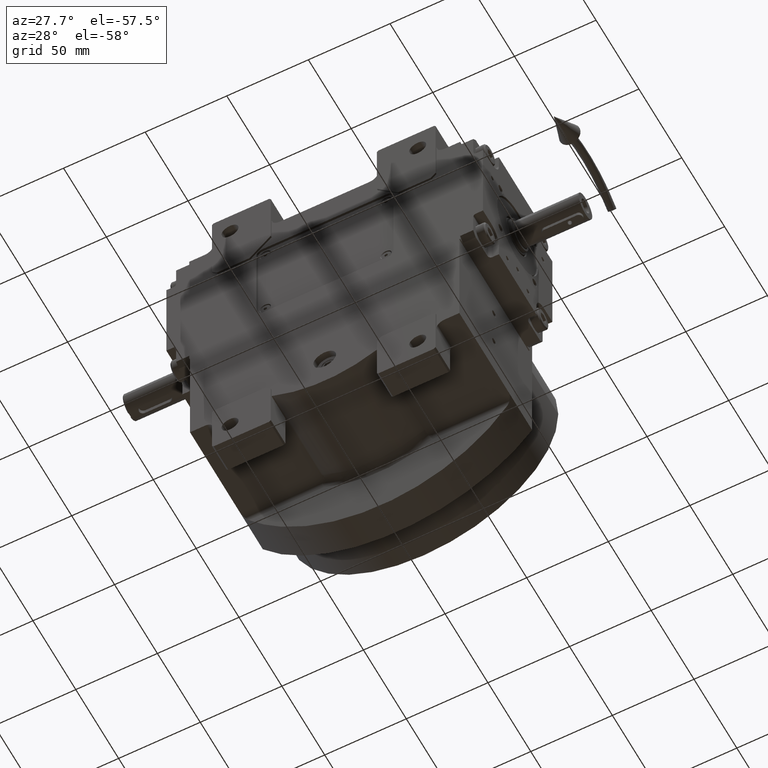
[diagram: clean part render]
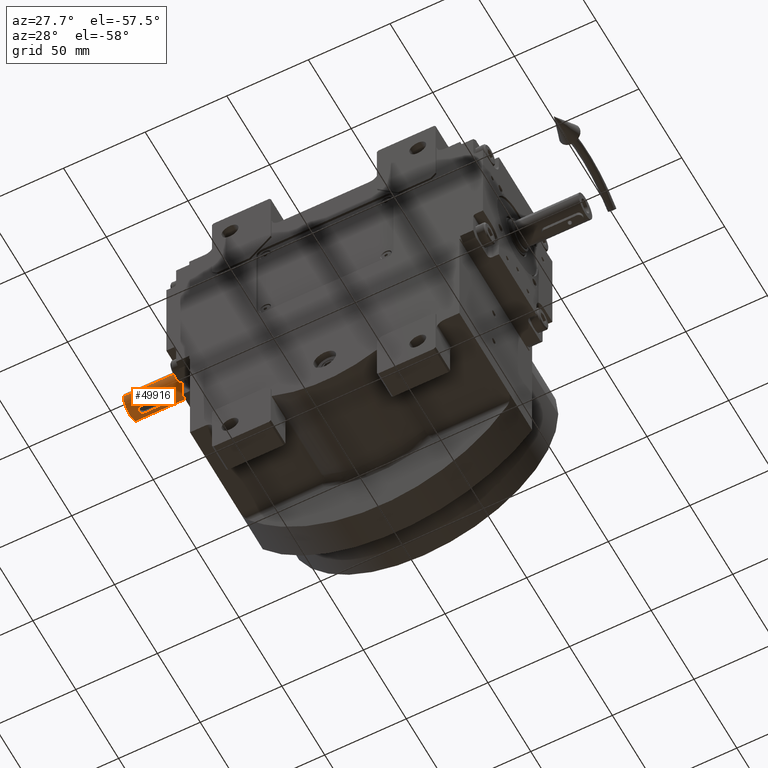
[diagram: same view with one face highlighted and labeled with its STEP entity id]
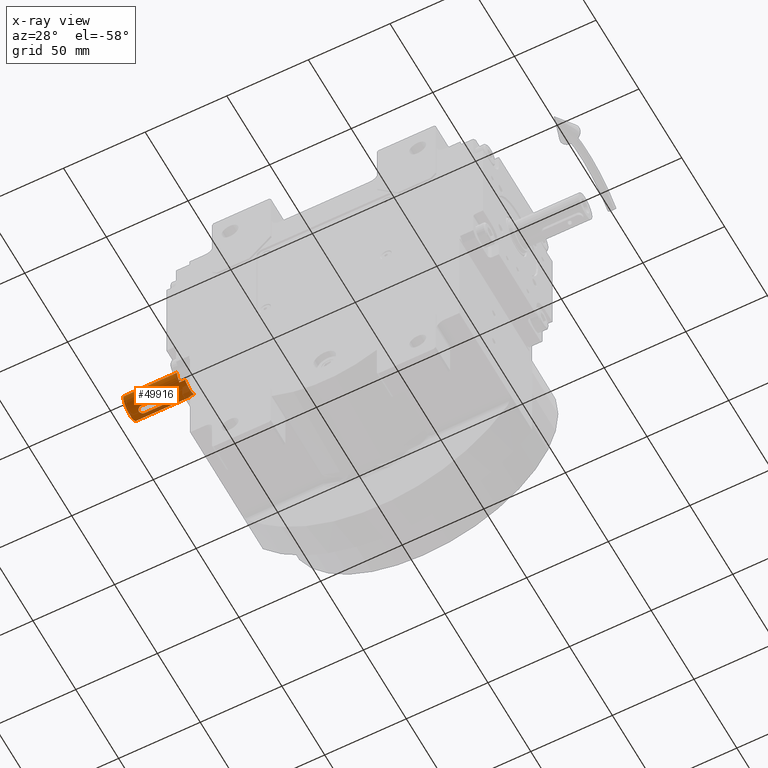
[diagram: x-ray of the same camera — body ghosted, the highlighted face saturated]
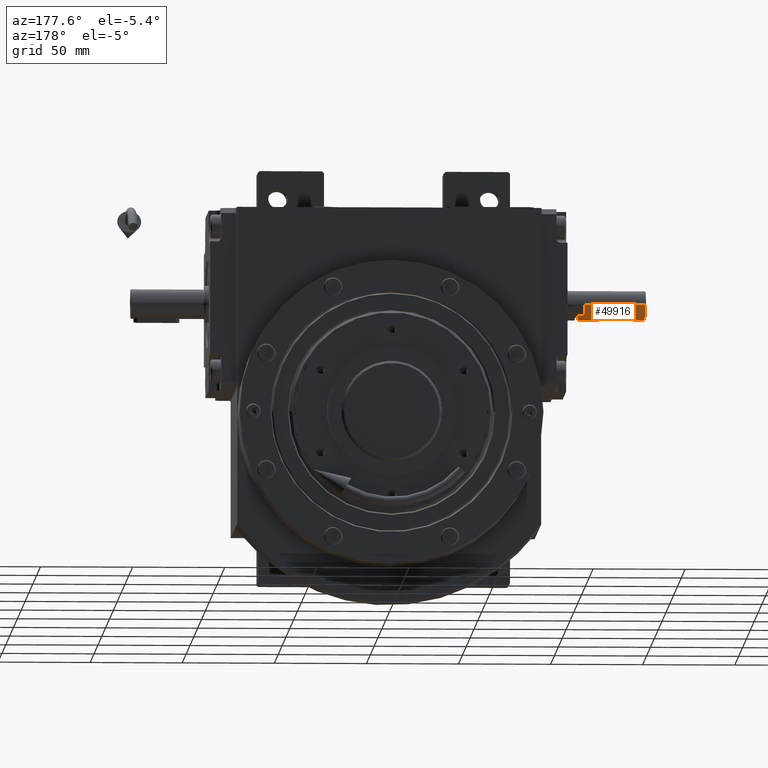
[diagram: same view with one face highlighted and labeled with its STEP entity id]
A machine part, auxiliary view. The second image highlights one B-rep face of the part: STEP entity #49916.
The next image is the same camera in x-ray: the body ghosted, the highlighted face saturated — about 8% of this face is hidden behind the body in this view.
A second angle (auxiliary view) of the same face is appended — the face is thin or edge-on in the first view.
In plain terms, the highlighted cylindrical surface (edge-blend (fillet) strip) has radius 8 mm, axis along (-1, 0, -0).
Its self-contained STEP definition (entity closure, byte-faithful):
#47 = CARTESIAN_POINT ( 'NONE',  ( -7.724778522608795939, -7.886405297773482204, -2.080357729226393726 ) ) ;
#56 = CARTESIAN_POINT ( 'NONE',  ( -7.870148552601055947, -8.546878638770436964, 1.435523779901909158 ) ) ;
#85 = EDGE_LOOP ( 'NONE', ( #47085, #61977, #10404, #5278, #27039, #33429, #56922, #29879, #43760 ) ) ;
#205 = CARTESIAN_POINT ( 'NONE',  ( -7.654844204821131370, 9.420231506114598474, 2.324497789962386651 ) ) ;
#373 = CARTESIAN_POINT ( 'NONE',  ( -7.723938623400872672, -7.881714744468441225, -2.083476012860455473 ) ) ;
#680 = AXIS2_PLACEMENT_3D ( 'NONE', #1620, #26859, #41416 ) ;
#1330 = DIRECTION ( 'NONE',  ( -5.028988270783950259E-30, -1.000000000000000000, -3.217488641336500757E-29 ) ) ;
#1620 = CARTESIAN_POINT ( 'NONE',  ( -8.326672684688674053E-14, -14.50000000000001243, 8.881784196977471125E-16 ) ) ;
#2347 = CARTESIAN_POINT ( 'NONE',  ( -7.729055400556648081, 9.910033320374788346, -2.064433424120335925 ) ) ;
#2629 = EDGE_CURVE ( 'NONE', #7548, #48796, #59123, .T. ) ;
#3463 = CARTESIAN_POINT ( 'NONE',  ( -7.601064276211062065, 8.667645054921111480, 2.495729933866756234 ) ) ;
#3773 = CARTESIAN_POINT ( 'NONE',  ( -7.870145651787323615, 10.54686819285890920, 1.435538763768742676 ) ) ;
#4098 = CARTESIAN_POINT ( 'NONE',  ( -7.818950924554045834, 10.34151174380530591, 1.694038868013101107 ) ) ;
#4253 = CARTESIAN_POINT ( 'NONE',  ( -7.858430025142280506, -8.501602191622358973, 1.498267243204110200 ) ) ;
#4311 = EDGE_CURVE ( 'NONE', #27258, #19777, #54035, .T. ) ;
#4411 = CARTESIAN_POINT ( 'NONE',  ( -7.926548573828249289, 10.75412700083584738, 1.082384327297592819 ) ) ;
#4573 = CARTESIAN_POINT ( 'NONE',  ( -7.869528224857211818, -8.544634516007480585, -1.439740124075520544 ) ) ;
#4583 = CARTESIAN_POINT ( 'NONE',  ( -7.736332535508957164, -7.949241378412951420, 2.037147536094310318 ) ) ;
#4720 = CARTESIAN_POINT ( 'NONE',  ( -7.889222162295352447, 10.61900871907578114, -1.326888915456126972 ) ) ;
#5031 = CARTESIAN_POINT ( 'NONE',  ( -7.943162383139123150, 10.81170671168997188, -0.9518920421091074946 ) ) ;
#5199 = CARTESIAN_POINT ( 'NONE',  ( -7.651260052980091153, -7.390267157407302001, -2.336284820294352027 ) ) ;
#5209 = CARTESIAN_POINT ( 'NONE',  ( -7.781001480692795624, -8.171350014725661026, 1.859348112012540355 ) ) ;
#5278 = ORIENTED_EDGE ( 'NONE', *, *, #21072, .F. ) ;
#6376 = CARTESIAN_POINT ( 'NONE',  ( -6.000000000000060396, 18.50000000000054357, -5.291502622129308442 ) ) ;
#6485 = CARTESIAN_POINT ( 'NONE',  ( -7.599879365290489019, -6.668702691058381760, 2.499999999999863221 ) ) ;
#6801 = CARTESIAN_POINT ( 'NONE',  ( -7.620319282521517579, -7.066686668034139807, 2.435251448458621404 ) ) ;
#7499 = CARTESIAN_POINT ( 'NONE',  ( -7.712108570150658871, 9.816016835437377352, -2.127502101777040355 ) ) ;
#7548 = VERTEX_POINT ( 'NONE', #58023 ) ;
#7963 = CARTESIAN_POINT ( 'NONE',  ( -7.599610668966979787, 8.584334579730624526, 2.499999999999863221 ) ) ;
#8615 = CARTESIAN_POINT ( 'NONE',  ( -7.875889439934075753, 10.56874963327139483, 1.403669773341472471 ) ) ;
#8669 = EDGE_LOOP ( 'NONE', ( #58975, #33800, #48728, #11850, #14650 ) ) ;
#8927 = CARTESIAN_POINT ( 'NONE',  ( -7.908314432885443779, 10.68913779988640300, -1.208032174181405072 ) ) ;
#9073 = CARTESIAN_POINT ( 'NONE',  ( -7.657274517123529023, -7.440225538193761423, -2.316482665155040088 ) ) ;
#9253 = CARTESIAN_POINT ( 'NONE',  ( -7.891108706583535692, 10.62647181727947832, 1.317580379603381147 ) ) ;
#9401 = CARTESIAN_POINT ( 'NONE',  ( -7.810445813785888980, -8.303736805049988234, -1.731225908313895223 ) ) ;
#9567 = CARTESIAN_POINT ( 'NONE',  ( -7.612765888282690518, 8.952742131180617235, 2.458965909810845396 ) ) ;
#9730 = CARTESIAN_POINT ( 'NONE',  ( -7.889219016176688193, -8.618996049596164610, -1.326908976154830722 ) ) ;
#9880 = CARTESIAN_POINT ( 'NONE',  ( -7.995163786308136622, 10.98537302236839430, -0.3160960575175699172 ) ) ;
#10033 = CARTESIAN_POINT ( 'NONE',  ( -7.599610693731793987, -6.584334723118930199, -2.500000000000137224 ) ) ;
#10042 = CARTESIAN_POINT ( 'NONE',  ( -7.729055373105611082, -7.910033180036226241, 2.064433519869723899 ) ) ;
#10404 = ORIENTED_EDGE ( 'NONE', *, *, #31002, .T. ) ;
#10703 = CARTESIAN_POINT ( 'NONE',  ( -7.999983987892219872, -8.999999999989739763, -0.1559358289472140280 ) ) ;
#11026 = CARTESIAN_POINT ( 'NONE',  ( -7.726574882324661608, -7.896379721982782485, 2.073674573656081321 ) ) ;
#11097 = EDGE_CURVE ( 'NONE', #49558, #46714, #37290, .T. ) ;
#11344 = CARTESIAN_POINT ( 'NONE',  ( -7.933816060829138372, -8.779558468202258936, -1.029148283453856783 ) ) ;
#11348 = LINE ( 'NONE', #55652, #50383 ) ;
#11354 = CARTESIAN_POINT ( 'NONE',  ( -7.699863787163271134, -7.741869569860750033, 2.171271550294594288 ) ) ;
#11406 = EDGE_CURVE ( 'NONE', #44757, #46714, #11348, .T. ) ;
#11742 = CARTESIAN_POINT ( 'NONE',  ( -7.768808236052439753, 10.11442204608119688, -1.910564298747437828 ) ) ;
#11850 = ORIENTED_EDGE ( 'NONE', *, *, #59534, .T. ) ;
#12051 = CARTESIAN_POINT ( 'NONE',  ( -7.667427322750553387, 9.519709500358869647, -2.282718967080525463 ) ) ;
#12112 = FACE_BOUND ( 'NONE', #8669, .T. ) ;
#13817 = CARTESIAN_POINT ( 'NONE',  ( -7.950298931508330114, 10.83617327606148706, -0.8905620606375787007 ) ) ;
#13984 = CARTESIAN_POINT ( 'NONE',  ( -7.766181138575222853, -8.108601794240989591, -1.926896157381329910 ) ) ;
#14112 = B_SPLINE_CURVE_WITH_KNOTS ( 'NONE', 3,
 ( #51679, #7963, #3463, #37767, #46829, #61679, #9567, #18994, #63584, #28693, #14762, #54216, #205, #58437, #14445, #59383, #43888, #33856, #53273, #38396, #29330, #58124, #63273, #38725, #48406, #52955, #24798, #19301, #43238, #29640, #19949, #39024, #34497, #39677, #4098, #53574, #59054, #34170, #23845, #3773, #48107, #8615, #39351, #19620, #9253, #24468, #63881, #4411, #14129, #29018, #53897, #28388, #62949, #23518, #33230, #9880, #49343, #44181, #43565, #48727, #13817, #44512, #24168, #5031, #18671, #33561, #8927, #58730, #49048, #4720, #44844, #56056, #41503, #36666, #39977, #56370, #26628, #51838, #22101, #35131, #32126, #41827, #16619, #11742, #30302, #41183, #61534, #36955, #2347, #22413, #56680, #27276, #51212, #7499, #25452, #42129, #49679, #46659, #12051, #15077, #21783, #46985, #60890, #61212, #34803, #46335, #36338, #54851, #20268, #31802, #16935 ),
 .UNSPECIFIED., .F., .F.,
 ( 4, 2, 2, 2, 2, 1, 1, 2, 2, 2, 2, 1, 1, 1, 2, 2, 2, 2, 2, 2, 2, 2, 1, 1, 2, 2, 2, 1, 1, 2, 2, 2, 2, 2, 1, 1, 2, 2, 2, 2, 1, 1, 2, 2, 2, 2, 2, 2, 2, 2, 1, 1, 1, 2, 2, 2, 2, 1, 2, 2, 2, 2, 2, 4 ),
 ( 0.000000000000000000, 0.03124999999999732159, 0.04687499999999598238, 0.06249999999999464317, 0.09374999999999129863, 0.1093749999999896055, 0.1171874999999887590, 0.1210937499999883704, 0.1249999999999879818, 0.1562499999999814870, 0.1718749999999782674, 0.1796874999999764078, 0.1835937499999757694, 0.1855468749999754918, 0.1865234374999751310, 0.1874999999999747702, 0.2187499999999751588, 0.2343749999999752975, 0.2421874999999753808, 0.2499999999999754641, 0.2812499999999767963, 0.2968749999999772404, 0.3046874999999771849, 0.3085937499999768518, 0.3105468749999770184, 0.3124999999999771294, 0.3437499999999827360, 0.3593749999999857336, 0.3671874999999871214, 0.3710937499999876765, 0.3749999999999882316, 0.5000000000000126565, 0.5625000000000248690, 0.5937500000000309752, 0.6093750000000340838, 0.6171875000000355271, 0.6210937500000360822, 0.6250000000000365263, 0.6562500000000414113, 0.6718750000000440759, 0.6796875000000456302, 0.6835937500000465183, 0.6855468750000467404, 0.6875000000000468514, 0.7187500000000487388, 0.7343750000000496270, 0.7421875000000498490, 0.7500000000000500711, 0.7812500000000514033, 0.7968750000000524025, 0.8046875000000531797, 0.8085937500000536238, 0.8105468750000536238, 0.8115234375000532907, 0.8125000000000528466, 0.8437500000000419664, 0.8593750000000365263, 0.8671875000000337508, 0.8710937500000326406, 0.8750000000000314193, 0.9062500000000232037, 0.9218750000000190958, 0.9375000000000149880, 1.000000000000000000 ),
 .UNSPECIFIED. ) ;
#14129 = CARTESIAN_POINT ( 'NONE',  ( -7.934595521304153465, 10.78214323704112232, 1.021006897969870542 ) ) ;
#14280 = CARTESIAN_POINT ( 'NONE',  ( -7.654844204338841607, -7.420231527821009365, -2.324497781422852682 ) ) ;
#14289 = CARTESIAN_POINT ( 'NONE',  ( -7.999984010412704905, -9.000000000020543567, 0.3118716574275748332 ) ) ;
#14445 = CARTESIAN_POINT ( 'NONE',  ( -7.658711869185054866, 9.451839855107522226, 2.311727440271675871 ) ) ;
#14650 = ORIENTED_EDGE ( 'NONE', *, *, #39947, .F. ) ;
#14762 = CARTESIAN_POINT ( 'NONE',  ( -7.643326268999204309, 9.320565408074484637, 2.362159866744192094 ) ) ;
#14921 = CARTESIAN_POINT ( 'NONE',  ( -7.610461448454181266, -6.911438580099014573, -2.466246098710449530 ) ) ;
#14932 = CARTESIAN_POINT ( 'NONE',  ( -7.762426901798054502, -8.082524201873939163, 1.935786860889370686 ) ) ;
#15077 = CARTESIAN_POINT ( 'NONE',  ( -7.664084486463556445, 9.494096124192232367, -2.293874090828096790 ) ) ;
#15093 = DIRECTION ( 'NONE',  ( 5.028988270783950259E-30, 1.000000000000000000, 3.217488641336500757E-29 ) ) ;
#15229 = CARTESIAN_POINT ( 'NONE',  ( -7.858938483348102189, -8.504166614682857173, -1.496641347286817858 ) ) ;
#15572 = CARTESIAN_POINT ( 'NONE',  ( -7.943162907986746291, -8.811708239887865446, -0.9518883688483192884 ) ) ;
#15842 = LINE ( 'NONE', #43978, #29438 ) ;
#15904 = CARTESIAN_POINT ( 'NONE',  ( -7.980697442142974829, -8.938304694916066495, -0.5580494228027357284 ) ) ;
#16217 = CARTESIAN_POINT ( 'NONE',  ( -7.995162348639846428, -8.985368823457067222, -0.3161290646995249531 ) ) ;
#16231 = CARTESIAN_POINT ( 'NONE',  ( -7.629834090008844605, -7.182859079824570614, 2.405282328503334455 ) ) ;
#16619 = CARTESIAN_POINT ( 'NONE',  ( -7.784192165088349213, 10.18809686728448227, -1.847419042669956601 ) ) ;
#16796 = CARTESIAN_POINT ( 'NONE',  ( 0.000000000000000000, 22.00000000000051870, 4.683861624749757595E-28 ) ) ;
#16935 = CARTESIAN_POINT ( 'NONE',  ( -7.599342076785392308, 8.500000000000007105, -2.500000000000142109 ) ) ;
#17628 = CYLINDRICAL_SURFACE ( 'NONE', #45376, 8.000000000000000000 ) ;
#17963 = LINE ( 'NONE', #38647, #21634 ) ;
#18671 = CARTESIAN_POINT ( 'NONE',  ( -7.933820184732142344, 10.77957040418500156, -1.029119593313637449 ) ) ;
#18691 = LINE ( 'NONE', #62024, #63486 ) ;
#18828 = CARTESIAN_POINT ( 'NONE',  ( -7.619989657867171751, -7.066245866914536933, -2.436251368447497789 ) ) ;
#18838 = CARTESIAN_POINT ( 'NONE',  ( -7.934598688310455117, -8.782152912066639061, 1.020985076716943274 ) ) ;
#18858 = EDGE_CURVE ( 'NONE', #21738, #19777, #17963, .T. ) ;
#18994 = CARTESIAN_POINT ( 'NONE',  ( -7.619989655309055365, 9.066245860163258286, 2.436251374074806186 ) ) ;
#19083 = CARTESIAN_POINT ( 'NONE',  ( 0.000000000000000000, 18.50000000000054357, 7.999999999999965361 ) ) ;
#19165 = CARTESIAN_POINT ( 'NONE',  ( -7.937879583209227263, -8.793501575971616191, 0.9949567978170127391 ) ) ;
#19301 = CARTESIAN_POINT ( 'NONE',  ( -7.743278745458219703, 9.986810080997960526, 2.011469677891878582 ) ) ;
#19440 = EDGE_CURVE ( 'NONE', #46438, #49657, #52452, .T. ) ;
#19447 = CARTESIAN_POINT ( 'NONE',  ( -7.881301598824089538, -8.589253119451681684, -1.372971940772247823 ) ) ;
#19456 = CARTESIAN_POINT ( 'NONE',  ( -7.902975999635382998, -8.670003007698854347, 1.244086456379948968 ) ) ;
#19620 = CARTESIAN_POINT ( 'NONE',  ( -7.877248025395636510, 10.57390947069561093, 1.396040962320749479 ) ) ;
#19736 = AXIS2_PLACEMENT_3D ( 'NONE', #43089, #57963, #28236 ) ;
#19776 = CARTESIAN_POINT ( 'NONE',  ( -7.725387240851736337, -7.889793451436073468, -2.078094470859459975 ) ) ;
#19777 = VERTEX_POINT ( 'NONE', #19083 ) ;
#19788 = CARTESIAN_POINT ( 'NONE',  ( -7.798008126204820201, -8.249076481532668481, 1.786453217652258729 ) ) ;
#19823 = CARTESIAN_POINT ( 'NONE',  ( -8.326672684688674053E-14, -14.50000000000001243, -8.000000000000035527 ) ) ;
#19949 = CARTESIAN_POINT ( 'NONE',  ( -7.780998603289602578, 10.17133684582571540, 1.859359978298561478 ) ) ;
#20111 = CARTESIAN_POINT ( 'NONE',  ( -7.818308903479839422, -8.337577135602677103, -1.695263955323612848 ) ) ;
#20268 = CARTESIAN_POINT ( 'NONE',  ( -7.605156640088294395, 8.833212475600760172, -2.482886367908335945 ) ) ;
#20420 = CARTESIAN_POINT ( 'NONE',  ( -7.957945355145101374, -8.862233867186674274, -0.8203901879099854133 ) ) ;
#20763 = CARTESIAN_POINT ( 'NONE',  ( -7.664084483877389609, -7.494096094595430912, 2.293874103662838948 ) ) ;
#20926 = AXIS2_PLACEMENT_3D ( 'NONE', #42966, #51384, #47492 ) ;
#21072 = EDGE_CURVE ( 'NONE', #41597, #55958, #34080, .T. ) ;
#21553 = LINE ( 'NONE', #60031, #58113 ) ;
#21634 = VECTOR ( 'NONE', #52875, 1000.000000000000000 ) ;
#21738 = VERTEX_POINT ( 'NONE', #62274 ) ;
#21783 = CARTESIAN_POINT ( 'NONE',  ( -7.661895578303519194, 9.477105797576440338, -2.301162686349871311 ) ) ;
#22101 = CARTESIAN_POINT ( 'NONE',  ( -7.822115816825180090, 10.35375000387849376, -1.677543191626158947 ) ) ;
#22413 = CARTESIAN_POINT ( 'NONE',  ( -7.727302924475895729, 9.900402361615585178, -2.070963970279529498 ) ) ;
#23518 = CARTESIAN_POINT ( 'NONE',  ( -7.999982090879929508, 11.00000000195970173, 0.3118273447369484530 ) ) ;
#23845 = CARTESIAN_POINT ( 'NONE',  ( -7.866367115377316033, 10.53234680562570524, 1.455977534968692755 ) ) ;
#23906 = VECTOR ( 'NONE', #30691, 1000.000000000000000 ) ;
#24002 = CARTESIAN_POINT ( 'NONE',  ( -7.626113596998536970, -7.143576033023848915, -2.417132246994160738 ) ) ;
#24004 = CIRCLE ( 'NONE', #20926, 8.000000000000000000 ) ;
#24168 = CARTESIAN_POINT ( 'NONE',  ( -7.944516461766632176, 10.81635858268966288, -0.9405310771788085722 ) ) ;
#24323 = CARTESIAN_POINT ( 'NONE',  ( -7.879689434043175567, -8.583162037776309816, -1.382196249327188875 ) ) ;
#24332 = CARTESIAN_POINT ( 'NONE',  ( -7.926554003438892160, -8.754144513868073574, 1.082347325202289712 ) ) ;
#24468 = CARTESIAN_POINT ( 'NONE',  ( -7.902969796476416953, 10.66997973449641002, 1.244127049505119542 ) ) ;
#24635 = CARTESIAN_POINT ( 'NONE',  ( -7.940918945624039438, -8.803989484582560365, 0.9704374996217896010 ) ) ;
#24798 = CARTESIAN_POINT ( 'NONE',  ( -7.733139016801557020, 9.932863856727067287, 2.049250553900862748 ) ) ;
#24962 = CARTESIAN_POINT ( 'NONE',  ( -7.668200327694430385, -7.527483958348799575, -2.280258813161119669 ) ) ;
#25295 = CARTESIAN_POINT ( 'NONE',  ( -7.946851830538784967, -8.824367221382333426, -0.9205611239592297323 ) ) ;
#25304 = CARTESIAN_POINT ( 'NONE',  ( -7.626444717560786124, -7.143902638985747622, 2.415982779006227599 ) ) ;
#25452 = CARTESIAN_POINT ( 'NONE',  ( -7.699863793423318725, 9.741869600887644864, -2.171271532933885862 ) ) ;
#26253 = CARTESIAN_POINT ( 'NONE',  ( -7.944516351723681424, -8.816357582644887003, -0.9405335252425955916 ) ) ;
#26399 = CARTESIAN_POINT ( 'NONE',  ( -7.999991997699565260, -8.999990980747663016, -3.297654613636213846E-10 ) ) ;
#26628 = CARTESIAN_POINT ( 'NONE',  ( -7.839977690278450595, 10.42802790405988311, -1.591968337224201724 ) ) ;
#26672 = CARTESIAN_POINT ( 'NONE',  ( -7.599342076785392308, -6.500000000000005329, -2.500000000000132783 ) ) ;
#26859 = DIRECTION ( 'NONE',  ( -5.028988270783950259E-30, -1.000000000000000000, -3.217488641336500757E-29 ) ) ;
#26996 = DIRECTION ( 'NONE',  ( -0.7500000000000014433, 0.000000000000000000, 0.6614378277661461247 ) ) ;
#27039 = ORIENTED_EDGE ( 'NONE', *, *, #44340, .F. ) ;
#27201 = CARTESIAN_POINT ( 'NONE',  ( -6.000000000000324185, 22.00000000000051870, -5.291502622129308442 ) ) ;
#27258 = VERTEX_POINT ( 'NONE', #51907 ) ;
#27276 = CARTESIAN_POINT ( 'NONE',  ( -7.726094674724135913, 9.893721572861970515, -2.075462055241806603 ) ) ;
#27616 = CARTESIAN_POINT ( 'NONE',  ( 0.000000000000000000, 18.50000000000054357, -4.440892098500253819E-15 ) ) ;
#27994 = EDGE_CURVE ( 'NONE', #21738, #49558, #28581, .T. ) ;
#28236 = DIRECTION ( 'NONE',  ( -1.000000000000000000, -6.505213034913026604E-16, 2.939673447408655940E-10 ) ) ;
#28336 = VERTEX_POINT ( 'NONE', #6376 ) ;
#28388 = CARTESIAN_POINT ( 'NONE',  ( -7.940919006667417790, 10.80399002368006478, 0.9704362042913028397 ) ) ;
#28552 = CARTESIAN_POINT ( 'NONE',  ( -7.940029773766399401, -8.800924872688485223, 0.9776672433655796413 ) ) ;
#28581 = CIRCLE ( 'NONE', #680, 8.000000000000000000 ) ;
#28693 = CARTESIAN_POINT ( 'NONE',  ( -7.637261688103139434, 9.261285322827921718, 2.381622190885048340 ) ) ;
#28709 = DIRECTION ( 'NONE',  ( -0.7499999999999984457, 0.000000000000000000, -0.6614378277661495664 ) ) ;
#28852 = CARTESIAN_POINT ( 'NONE',  ( -7.722682497957555015, -7.874681726748943511, -2.088134425561439578 ) ) ;
#28861 = CARTESIAN_POINT ( 'NONE',  ( -7.875890344786150798, -8.568752829731700160, 1.403665058619066430 ) ) ;
#29018 = CARTESIAN_POINT ( 'NONE',  ( -7.937877676923800863, 10.79349587128952592, 0.9949699799994196070 ) ) ;
#29170 = CARTESIAN_POINT ( 'NONE',  ( -7.822112037379855387, -8.353734015663372148, -1.677560817557955275 ) ) ;
#29330 = CARTESIAN_POINT ( 'NONE',  ( -7.714072043893927422, 9.825599978242728127, 2.119820395924732814 ) ) ;
#29438 = VECTOR ( 'NONE', #55288, 1000.000000000000000 ) ;
#29640 = CARTESIAN_POINT ( 'NONE',  ( -7.769459565186877192, 10.11684157107170456, 1.907398453000360927 ) ) ;
#29795 = CARTESIAN_POINT ( 'NONE',  ( -7.599342076785392308, -6.500000000000005329, -2.500000000000132783 ) ) ;
#29806 = CARTESIAN_POINT ( 'NONE',  ( -7.727302901902333154, -7.900402247668325550, 2.070964047304901801 ) ) ;
#29879 = ORIENTED_EDGE ( 'NONE', *, *, #11097, .F. ) ;
#30131 = CARTESIAN_POINT ( 'NONE',  ( -7.605022254006595261, -6.790474098278227899, -2.483408542904558480 ) ) ;
#30141 = CARTESIAN_POINT ( 'NONE',  ( -7.640982172138289563, -7.300567616680996075, 2.369770010351384570 ) ) ;
#30302 = CARTESIAN_POINT ( 'NONE',  ( -7.749664401063705910, 10.01872935547022792, -1.986231297070850665 ) ) ;
#30482 = CARTESIAN_POINT ( 'NONE',  ( -7.667427320602748786, -7.519709476133543902, 2.282718977951658346 ) ) ;
#30691 = DIRECTION ( 'NONE',  ( 5.028988270783950259E-30, 1.000000000000000000, 3.217488641336500757E-29 ) ) ;
#30779 = CARTESIAN_POINT ( 'NONE',  ( -7.950298545264418593, -8.836170032045325584, -0.8905704671531213812 ) ) ;
#30787 = CARTESIAN_POINT ( 'NONE',  ( -7.649720846600994051, -7.380167541214359694, 2.341543764679520745 ) ) ;
#31002 = EDGE_CURVE ( 'NONE', #27258, #55958, #21553, .T. ) ;
#31802 = CARTESIAN_POINT ( 'NONE',  ( -7.599879391514158478, 8.668702861449720132, -2.500000000000137668 ) ) ;
#32126 = CARTESIAN_POINT ( 'NONE',  ( -7.810447572200426514, 10.30374450156927679, -1.731217953469695203 ) ) ;
#32738 = VERTEX_POINT ( 'NONE', #63542 ) ;
#33230 = CARTESIAN_POINT ( 'NONE',  ( -7.999984946499269611, 10.99999999902016157, -0.1559136959357281804 ) ) ;
#33375 = AXIS2_PLACEMENT_3D ( 'NONE', #27616, #51555, #26996 ) ;
#33429 = ORIENTED_EDGE ( 'NONE', *, *, #35263, .F. ) ;
#33561 = CARTESIAN_POINT ( 'NONE',  ( -7.924329680634804696, 10.74654197988428805, -1.099869672103108709 ) ) ;
#33711 = CARTESIAN_POINT ( 'NONE',  ( -7.806699535334007400, -8.287437797547418938, -1.748100577266491706 ) ) ;
#33800 = ORIENTED_EDGE ( 'NONE', *, *, #53322, .F. ) ;
#33856 = CARTESIAN_POINT ( 'NONE',  ( -7.694369406829941305, 9.705765883429668506, 2.190386650334031238 ) ) ;
#33912 = CARTESIAN_POINT ( 'NONE',  ( -7.599342076785073452, 8.500000000000007105, 2.499999999999857891 ) ) ;
#34011 = CARTESIAN_POINT ( 'NONE',  ( -7.709360326101486471, -7.797750532431239279, -2.136891627761669632 ) ) ;
#34080 = CIRCLE ( 'NONE', #47514, 8.000000000000175859 ) ;
#34170 = CARTESIAN_POINT ( 'NONE',  ( -7.858424809488385065, 10.50158257647105664, 1.498293586801583421 ) ) ;
#34329 = CARTESIAN_POINT ( 'NONE',  ( -7.694369416824373253, -7.705765936253712312, -2.190386621413336954 ) ) ;
#34340 = CARTESIAN_POINT ( 'NONE',  ( -7.918991250507119162, -8.727407198976790070, 1.135923945974677940 ) ) ;
#34497 = CARTESIAN_POINT ( 'NONE',  ( -7.793357275061124412, 10.22817784713570255, 1.806678030446586591 ) ) ;
#34504 = B_SPLINE_CURVE_WITH_KNOTS ( 'NONE', 3,
 ( #44045, #14289, #39840, #24635, #28552, #19165, #18838, #24332, #34340, #19456, #59540, #48264, #43738, #28861, #54377, #56, #48580, #4253, #39200, #48904, #63117, #19788, #39519, #59227, #5209, #38573, #14932, #58298, #63449, #4583, #54066, #10042, #29806, #11026, #60512, #55659, #59867, #11354, #41116, #50504, #50830, #30482, #20763, #60813, #35637, #30787, #30141, #16231, #25304, #6801, #55033, #51150, #6485, #35304 ),
 .UNSPECIFIED., .F., .F.,
 ( 4, 2, 2, 1, 1, 2, 2, 2, 1, 1, 2, 2, 2, 2, 2, 2, 2, 1, 1, 1, 2, 2, 2, 2, 1, 2, 2, 2, 2, 2, 4 ),
 ( 0.4999999999780067039, 0.6249999999835202935, 0.6289062499836926001, 0.6328124999838649067, 0.6406249999842095200, 0.6562499999848985244, 0.6874999999862765332, 0.6894531249863624645, 0.6914062499864485067, 0.6953124999866205913, 0.7031249999869642053, 0.7187499999876516554, 0.7499999999890261115, 0.7578124999893696145, 0.7656249999897131175, 0.7812499999904001236, 0.7968749999910871296, 0.8046874999914308546, 0.8085937499916031612, 0.8105468749916897586, 0.8115234374917326132, 0.8124999999917753568, 0.8437499999931452610, 0.8593749999938300466, 0.8671874999941726614, 0.8710937499943440798, 0.8749999999945153872, 0.9062499999958866237, 0.9218749999965721864, 0.9374999999972578602, 1.000000000000000000 ),
 .UNSPECIFIED. ) ;
#34803 = CARTESIAN_POINT ( 'NONE',  ( -7.629834084662908467, 9.182859042383055836, -2.405282339101181055 ) ) ;
#35131 = CARTESIAN_POINT ( 'NONE',  ( -7.818312088486548461, 10.33759076527112164, -1.695249246791598718 ) ) ;
#35263 = EDGE_CURVE ( 'NONE', #44757, #28336, #24004, .T. ) ;
#35304 = CARTESIAN_POINT ( 'NONE',  ( -7.599342076785337241, -6.500000000000005329, 2.499999999999867217 ) ) ;
#35637 = CARTESIAN_POINT ( 'NONE',  ( -7.661021802552385296, -7.470254389768755665, 2.304066828888795992 ) ) ;
#36338 = CARTESIAN_POINT ( 'NONE',  ( -7.620319284191918285, 9.066686673580765188, -2.435251446882377824 ) ) ;
#36666 = CARTESIAN_POINT ( 'NONE',  ( -7.878596580316718168, 10.57902351663136642, -1.388407151045347510 ) ) ;
#36955 = CARTESIAN_POINT ( 'NONE',  ( -7.732775387170930159, 9.930266335386756182, -2.050536154773778819 ) ) ;
#37022 = DIRECTION ( 'NONE',  ( -5.028988270783950259E-30, -1.000000000000000000, -3.217488641336500757E-29 ) ) ;
#37290 = CIRCLE ( 'NONE', #19736, 8.000000000000000000 ) ;
#37767 = CARTESIAN_POINT ( 'NONE',  ( -7.605022209670918798, 8.790473839629054709, 2.483408572969852735 ) ) ;
#38396 = CARTESIAN_POINT ( 'NONE',  ( -7.709360308036112386, 9.797750442539376436, 2.136891682251111035 ) ) ;
#38562 = CARTESIAN_POINT ( 'NONE',  ( -7.612765919353318367, -6.952742327616979523, -2.458965872638230632 ) ) ;
#38573 = CARTESIAN_POINT ( 'NONE',  ( -7.769463525728018460, -8.116860130156863917, 1.907382607916640049 ) ) ;
#38647 = CARTESIAN_POINT ( 'NONE',  ( 1.276756478318930021E-12, -14.50000000000001243, 7.999999999999965361 ) ) ;
#38725 = CARTESIAN_POINT ( 'NONE',  ( -7.723938595366857562, 9.881714606277157031, 2.083476104502885562 ) ) ;
#38878 = CARTESIAN_POINT ( 'NONE',  ( -7.601064315155432460, -6.667645281010250891, -2.495729919426480148 ) ) ;
#39024 = CARTESIAN_POINT ( 'NONE',  ( -7.785008876057604610, 10.18999816436970285, 1.842441418731128877 ) ) ;
#39191 = CARTESIAN_POINT ( 'NONE',  ( -7.883705967942038484, -8.598320449392561571, -1.359140628552879315 ) ) ;
#39200 = CARTESIAN_POINT ( 'NONE',  ( -7.852621985176591934, -8.478801237893561549, 1.528398000081773622 ) ) ;
#39351 = CARTESIAN_POINT ( 'NONE',  ( -7.876988438292018557, 10.57292369365361573, 1.397498206811892407 ) ) ;
#39509 = CARTESIAN_POINT ( 'NONE',  ( -7.740656023228742022, -7.974629792047414512, -2.021280222097369350 ) ) ;
#39519 = CARTESIAN_POINT ( 'NONE',  ( -7.793358618215769695, -8.228183800796710301, 1.806672287149160505 ) ) ;
#39677 = CARTESIAN_POINT ( 'NONE',  ( -7.798009086693891589, 10.24908076193292317, 1.786448939248669321 ) ) ;
#39840 = CARTESIAN_POINT ( 'NONE',  ( -7.980697463699272021, -8.940823933977828375, 0.6416072946251051290 ) ) ;
#39947 = EDGE_CURVE ( 'NONE', #48796, #32738, #14112, .T. ) ;
#39977 = CARTESIAN_POINT ( 'NONE',  ( -7.869532006572331539, 10.54464776241704627, -1.439720344804886976 ) ) ;
#41116 = CARTESIAN_POINT ( 'NONE',  ( -7.683399795064976168, -7.633681466435374929, 2.228549163935291677 ) ) ;
#41183 = CARTESIAN_POINT ( 'NONE',  ( -7.743938465828314577, 9.989268953828698727, -2.008273042403232456 ) ) ;
#41416 = DIRECTION ( 'NONE',  ( 1.808519292393783527E-14, 0.000000000000000000, 1.000000000000000000 ) ) ;
#41503 = CARTESIAN_POINT ( 'NONE',  ( -7.879689921916749995, 10.58316408078938409, -1.382193177523865169 ) ) ;
#41597 = VERTEX_POINT ( 'NONE', #27201 ) ;
#41827 = CARTESIAN_POINT ( 'NONE',  ( -7.806698791854178587, 10.28743455259041184, -1.748103824073703016 ) ) ;
#41900 = FACE_OUTER_BOUND ( 'NONE', #85, .T. ) ;
#42129 = CARTESIAN_POINT ( 'NONE',  ( -7.683399797834407075, 9.633681484462931266, -2.228549154858577186 ) ) ;
#42853 = CARTESIAN_POINT ( 'NONE',  ( -8.326672684688674053E-14, -15.00000000000001421, -3.019858152799185818E-27 ) ) ;
#42966 = CARTESIAN_POINT ( 'NONE',  ( 0.000000000000000000, 18.50000000000054357, -3.552713678800128193E-15 ) ) ;
#43089 = CARTESIAN_POINT ( 'NONE',  ( -8.326672684688674053E-14, -14.50000000000001243, 1.776356839397873232E-15 ) ) ;
#43238 = CARTESIAN_POINT ( 'NONE',  ( -7.762422580053430110, 10.08250358490607468, 1.935803715325479901 ) ) ;
#43565 = CARTESIAN_POINT ( 'NONE',  ( -7.963822675541611495, 10.88207045594552191, -0.7599439704952515307 ) ) ;
#43588 = DIRECTION ( 'NONE',  ( 5.028988270783950259E-30, 1.000000000000000000, 3.217488641336500757E-29 ) ) ;
#43738 = CARTESIAN_POINT ( 'NONE',  ( -7.876988897941753720, -8.572925308882956230, 1.397495807186371675 ) ) ;
#43760 = ORIENTED_EDGE ( 'NONE', *, *, #27994, .F. ) ;
#43888 = CARTESIAN_POINT ( 'NONE',  ( -7.677905413353856012, 9.597576702087074807, 2.247662242743615924 ) ) ;
#43913 = CARTESIAN_POINT ( 'NONE',  ( -6.106226635438360972E-13, 18.50000000000054357, -8.000000000000035527 ) ) ;
#43954 = CARTESIAN_POINT ( 'NONE',  ( -7.599342076785337241, -6.500000000000005329, 2.499999999999867217 ) ) ;
#43978 = CARTESIAN_POINT ( 'NONE',  ( -6.000000000000060396, 18.50000000000054357, -5.291502622129308442 ) ) ;
#44034 = CARTESIAN_POINT ( 'NONE',  ( -7.839972008357154465, -8.428005121883135331, -1.591995928213136624 ) ) ;
#44045 = CARTESIAN_POINT ( 'NONE',  ( -7.999991997699565260, -8.999990980747663016, -3.297654613636213846E-10 ) ) ;
#44181 = CARTESIAN_POINT ( 'NONE',  ( -7.974671713781322779, 10.91844612971858552, -0.6389180692160050246 ) ) ;
#44340 = EDGE_CURVE ( 'NONE', #28336, #41597, #15842, .T. ) ;
#44350 = CARTESIAN_POINT ( 'NONE',  ( -7.643326257871012608, -7.320565348340906553, -2.362159888309653510 ) ) ;
#44512 = CARTESIAN_POINT ( 'NONE',  ( -7.946852053313614661, 10.82436915705000224, -0.9205562516727971989 ) ) ;
#44757 = VERTEX_POINT ( 'NONE', #43913 ) ;
#44844 = CARTESIAN_POINT ( 'NONE',  ( -7.883707643493949035, 10.59832734404994703, -1.359130032935418786 ) ) ;
#45376 = AXIS2_PLACEMENT_3D ( 'NONE', #42853, #37022, #56752 ) ;
#46104 = CARTESIAN_POINT ( 'NONE',  ( -8.000000000000062172, -14.50000000000001243, 2.351740978372983101E-09 ) ) ;
#46335 = CARTESIAN_POINT ( 'NONE',  ( -7.626444713845952350, 9.143902610680431309, -2.415982786262282911 ) ) ;
#46438 = VERTEX_POINT ( 'NONE', #26672 ) ;
#46659 = CARTESIAN_POINT ( 'NONE',  ( -7.670948581178381964, 9.545693707699285824, -2.270880331648928330 ) ) ;
#46714 = VERTEX_POINT ( 'NONE', #19823 ) ;
#46829 = CARTESIAN_POINT ( 'NONE',  ( -7.606637774589827927, 8.831061594767701806, 2.478315909362750258 ) ) ;
#46985 = CARTESIAN_POINT ( 'NONE',  ( -7.661021806882082785, 9.470254434902736662, -2.304066809917436842 ) ) ;
#47085 = ORIENTED_EDGE ( 'NONE', *, *, #18858, .T. ) ;
#47492 = DIRECTION ( 'NONE',  ( -1.787459069646502346E-14, 0.000000000000000000, -1.000000000000000000 ) ) ;
#47514 = AXIS2_PLACEMENT_3D ( 'NONE', #16796, #52029, #28709 ) ;
#48107 = CARTESIAN_POINT ( 'NONE',  ( -7.874216865330345705, 10.56239167973915372, 1.413025745176700765 ) ) ;
#48264 = CARTESIAN_POINT ( 'NONE',  ( -7.877247758819254209, -8.573908356511045881, 1.396042625276270766 ) ) ;
#48406 = CARTESIAN_POINT ( 'NONE',  ( -7.724778493946299562, 9.886405156516515191, 2.080357823360818426 ) ) ;
#48580 = CARTESIAN_POINT ( 'NONE',  ( -7.866370906539946972, -8.532360691382576690, 1.455958116332377816 ) ) ;
#48727 = CARTESIAN_POINT ( 'NONE',  ( -7.957946083415724736, 10.86223953018513022, -0.8203742691562446732 ) ) ;
#48728 = ORIENTED_EDGE ( 'NONE', *, *, #19440, .F. ) ;
#48796 = VERTEX_POINT ( 'NONE', #33912 ) ;
#48894 = CARTESIAN_POINT ( 'NONE',  ( -7.833136206238962451, -8.400033248968130195, -1.625433493732265644 ) ) ;
#48904 = CARTESIAN_POINT ( 'NONE',  ( -7.833655508177791660, -8.402641097587316921, 1.623753674898116728 ) ) ;
#49048 = CARTESIAN_POINT ( 'NONE',  ( -7.893782065358741384, 10.63592097824822247, -1.299344474639297253 ) ) ;
#49192 = CARTESIAN_POINT ( 'NONE',  ( -7.899856527150351582, -8.658449960695531189, -1.262653213515654071 ) ) ;
#49343 = CARTESIAN_POINT ( 'NONE',  ( -7.980698877925072487, 10.93831210233454598, -0.5580170571611112740 ) ) ;
#49516 = CARTESIAN_POINT ( 'NONE',  ( -7.658711875236480893, -7.451839925429555755, -2.311727411302235691 ) ) ;
#49558 = VERTEX_POINT ( 'NONE', #46104 ) ;
#49657 = VERTEX_POINT ( 'NONE', #26399 ) ;
#49679 = CARTESIAN_POINT ( 'NONE',  ( -7.678228994221786508, 9.598119699086208101, -2.246246729645732909 ) ) ;
#49916 = ADVANCED_FACE ( 'NONE', ( #12112, #41900 ), #17628, .T. ) ;
#50383 = VECTOR ( 'NONE', #1330, 1000.000000000000000 ) ;
#50504 = CARTESIAN_POINT ( 'NONE',  ( -7.678228992078041770, -7.598119682054336188, 2.246246738018459865 ) ) ;
#50830 = CARTESIAN_POINT ( 'NONE',  ( -7.670948579166386061, -7.545693686769191721, 2.270880341298063598 ) ) ;
#51150 = CARTESIAN_POINT ( 'NONE',  ( -7.605156610450753085, -6.833212286728619134, 2.482886401503701546 ) ) ;
#51212 = CARTESIAN_POINT ( 'NONE',  ( -7.726044425183427933, 9.893444836934005338, -2.075649166055709927 ) ) ;
#51384 = DIRECTION ( 'NONE',  ( 5.028988270783950259E-30, 1.000000000000000000, 3.217488641336500757E-29 ) ) ;
#51555 = DIRECTION ( 'NONE',  ( 5.028988270783950259E-30, 1.000000000000000000, 3.217488641336500757E-29 ) ) ;
#51679 = CARTESIAN_POINT ( 'NONE',  ( -7.599342076785073452, 8.500000000000007105, 2.499999999999857891 ) ) ;
#51838 = CARTESIAN_POINT ( 'NONE',  ( -7.833141412427774064, 10.40005464524851675, -1.625408653745600507 ) ) ;
#51907 = CARTESIAN_POINT ( 'NONE',  ( -6.000000000000005329, 18.50000000000054357, 5.291502622129051758 ) ) ;
#52029 = DIRECTION ( 'NONE',  ( 5.028988270783950259E-30, 1.000000000000000000, 3.217488641336500757E-29 ) ) ;
#52452 = B_SPLINE_CURVE_WITH_KNOTS ( 'NONE', 3,
 ( #29795, #10033, #38878, #30131, #63107, #14921, #38562, #18828, #24002, #58584, #44350, #5199, #14280, #9073, #49516, #24962, #59530, #34329, #53424, #34011, #58286, #53741, #28852, #373, #47, #19776, #39509, #13984, #33711, #9401, #20111, #29170, #48894, #44034, #15229, #4573, #54055, #24323, #19447, #39191, #9730, #49192, #59217, #60803, #11344, #15572, #26253, #25295, #30779, #20420, #59860, #15904, #16217, #10703, #55649 ),
 .UNSPECIFIED., .F., .F.,
 ( 4, 2, 2, 2, 2, 1, 1, 2, 2, 2, 2, 1, 1, 1, 2, 2, 2, 2, 2, 2, 2, 2, 1, 1, 1, 2, 2, 2, 1, 1, 1, 2, 4 ),
 ( 0.000000000000000000, 0.03124999999863926903, 0.04687499999795888966, 0.06249999999727851030, 0.09374999999591777933, 0.1093749999952372265, 0.1171874999948969293, 0.1210937499947267598, 0.1249999999945565765, 0.1562499999931941386, 0.1718749999925127392, 0.1796874999921719285, 0.1835937499920018146, 0.1855468749919167160, 0.1865234374918742222, 0.1874999999918317284, 0.2499999999890759605, 0.2578124999887314583, 0.2656249999883870672, 0.2812499999876985068, 0.3124999999863212752, 0.3144531249862347888, 0.3164062499861481914, 0.3203124999859750521, 0.3281249999856287736, 0.3437499999849362164, 0.3749999999835511022, 0.3789062499833780184, 0.3828124999832048792, 0.3906249999828584896, 0.4062499999821653218, 0.4374999999807790974, 0.4999999999780067039 ),
 .UNSPECIFIED. ) ;
#52875 = DIRECTION ( 'NONE',  ( 5.028988270783950259E-30, 1.000000000000000000, 3.217488641336500757E-29 ) ) ;
#52955 = CARTESIAN_POINT ( 'NONE',  ( -7.725387212731404496, 9.889793313502982741, 2.078094563100466807 ) ) ;
#53153 = CARTESIAN_POINT ( 'NONE',  ( -6.000000000000005329, 22.00000000000051870, 5.291502622129051758 ) ) ;
#53273 = CARTESIAN_POINT ( 'NONE',  ( -7.700175131315993404, 9.742333418130654010, 2.169897870716044341 ) ) ;
#53322 = EDGE_CURVE ( 'NONE', #49657, #7548, #34504, .T. ) ;
#53424 = CARTESIAN_POINT ( 'NONE',  ( -7.700175144064213661, -7.742333483072318501, -2.169897833938154719 ) ) ;
#53574 = CARTESIAN_POINT ( 'NONE',  ( -7.833649818474545334, 10.40261782779354860, 1.623780940840403364 ) ) ;
#53741 = CARTESIAN_POINT ( 'NONE',  ( -7.719777602169842545, -7.858291821616327333, -2.098871540419708470 ) ) ;
#53897 = CARTESIAN_POINT ( 'NONE',  ( -7.940028772635620236, 10.80092193619504748, 0.9776741871700286302 ) ) ;
#54035 = CIRCLE ( 'NONE', #33375, 7.999999999999825917 ) ;
#54055 = CARTESIAN_POINT ( 'NONE',  ( -7.878596839112149475, -8.579024431694421082, -1.388405784732242854 ) ) ;
#54066 = CARTESIAN_POINT ( 'NONE',  ( -7.732775350933692948, -7.930266147985067349, 2.050536285096832501 ) ) ;
#54216 = CARTESIAN_POINT ( 'NONE',  ( -7.651260057461952258, 9.390267165245727909, 2.336284816988136726 ) ) ;
#54377 = CARTESIAN_POINT ( 'NONE',  ( -7.874218415723020392, -8.562397185236335417, 1.413017684629369386 ) ) ;
#54851 = CARTESIAN_POINT ( 'NONE',  ( -7.617678118112553243, 9.029917857827808092, -2.443521386917022475 ) ) ;
#55033 = CARTESIAN_POINT ( 'NONE',  ( -7.617678112720124517, -7.029917826378963674, 2.443521394260771640 ) ) ;
#55288 = DIRECTION ( 'NONE',  ( 9.589590379092924760E-30, 1.000000000000000000, 2.537652627714952515E-16 ) ) ;
#55649 = CARTESIAN_POINT ( 'NONE',  ( -7.999991997699565260, -8.999990980747663016, -3.297654613636213846E-10 ) ) ;
#55652 = CARTESIAN_POINT ( 'NONE',  ( -5.828670879282071837E-13, 18.50000000000054357, -8.000000000000035527 ) ) ;
#55659 = CARTESIAN_POINT ( 'NONE',  ( -7.726044407597039587, -7.893444750241548569, 2.075649224252881009 ) ) ;
#55958 = VERTEX_POINT ( 'NONE', #53153 ) ;
#56056 = CARTESIAN_POINT ( 'NONE',  ( -7.881302571458890682, 10.58925715550691571, -1.372965806437928649 ) ) ;
#56370 = CARTESIAN_POINT ( 'NONE',  ( -7.858944166177312951, 10.50418803459841399, -1.496612663384491615 ) ) ;
#56680 = CARTESIAN_POINT ( 'NONE',  ( -7.726574902704086867, 9.896379824005130388, -2.073674504959927667 ) ) ;
#56752 = DIRECTION ( 'NONE',  ( -1.809663530139005476E-14, 0.000000000000000000, -1.000000000000000000 ) ) ;
#56922 = ORIENTED_EDGE ( 'NONE', *, *, #11406, .T. ) ;
#57963 = DIRECTION ( 'NONE',  ( 6.661338149340800636E-16, -1.000000000000000000, 5.407682826782026163E-16 ) ) ;
#58023 = CARTESIAN_POINT ( 'NONE',  ( -7.599342076785337241, -6.500000000000005329, 2.499999999999867217 ) ) ;
#58113 = VECTOR ( 'NONE', #15093, 1000.000000000000000 ) ;
#58124 = CARTESIAN_POINT ( 'NONE',  ( -7.719777577182462380, 9.858291698278508264, 2.098871620169352248 ) ) ;
#58286 = CARTESIAN_POINT ( 'NONE',  ( -7.714072064914495819, -7.825600082300069538, -2.119820331097357791 ) ) ;
#58298 = CARTESIAN_POINT ( 'NONE',  ( -7.749664346031240214, -8.018729073758612103, 1.986231512394501131 ) ) ;
#58437 = CARTESIAN_POINT ( 'NONE',  ( -7.657274514683635402, 9.440225495199683792, 2.316482682551818773 ) ) ;
#58584 = CARTESIAN_POINT ( 'NONE',  ( -7.637261675882658807, -7.261285248908506240, -2.381622214422398187 ) ) ;
#58730 = CARTESIAN_POINT ( 'NONE',  ( -7.902679435035097733, 10.66869311359750938, -1.244422812158144431 ) ) ;
#58975 = ORIENTED_EDGE ( 'NONE', *, *, #2629, .F. ) ;
#59054 = CARTESIAN_POINT ( 'NONE',  ( -7.852616294803856256, 10.47877933185118238, 1.528426361149563428 ) ) ;
#59123 = LINE ( 'NONE', #43954, #23906 ) ;
#59217 = CARTESIAN_POINT ( 'NONE',  ( -7.908308247135254376, -8.689115266421435280, -1.208073007163425583 ) ) ;
#59227 = CARTESIAN_POINT ( 'NONE',  ( -7.785011302192692106, -8.190009154376641121, 1.842431290608167238 ) ) ;
#59383 = CARTESIAN_POINT ( 'NONE',  ( -7.668200324345895602, 9.527483920677822127, 2.280258831111348528 ) ) ;
#59530 = CARTESIAN_POINT ( 'NONE',  ( -7.677905417459887971, -7.597576733658496728, -2.247662227941513713 ) ) ;
#59534 = EDGE_CURVE ( 'NONE', #46438, #32738, #18691, .T. ) ;
#59540 = CARTESIAN_POINT ( 'NONE',  ( -7.891112839043294080, -8.626489160832742087, 1.317554493892801881 ) ) ;
#59860 = CARTESIAN_POINT ( 'NONE',  ( -7.971656876989960061, -8.908504921120881548, -0.6793964370148937171 ) ) ;
#59867 = CARTESIAN_POINT ( 'NONE',  ( -7.712108559403882069, -7.816016782250823525, 2.127502132909679045 ) ) ;
#60031 = CARTESIAN_POINT ( 'NONE',  ( -6.000000000000005329, 18.50000000000054357, 5.291502622129051758 ) ) ;
#60512 = CARTESIAN_POINT ( 'NONE',  ( -7.726094655830539004, -7.893721478926240209, 2.075462118317775495 ) ) ;
#60803 = CARTESIAN_POINT ( 'NONE',  ( -7.924323491686461551, -8.746521456702623709, -1.099911590010173468 ) ) ;
#60813 = CARTESIAN_POINT ( 'NONE',  ( -7.661895575357880794, -7.477105763931899851, 2.301162700644161951 ) ) ;
#60890 = CARTESIAN_POINT ( 'NONE',  ( -7.649720842657127484, 9.380167526017849866, -2.341543772565651604 ) ) ;
#61212 = CARTESIAN_POINT ( 'NONE',  ( -7.640982165083587851, 9.300567574413690863, -2.369770024500429173 ) ) ;
#61534 = CARTESIAN_POINT ( 'NONE',  ( -7.736332577616511053, 9.949241596406887211, -2.037147381184005290 ) ) ;
#61679 = CARTESIAN_POINT ( 'NONE',  ( -7.610461411958887368, 8.911438364252793676, 2.466246135030248698 ) ) ;
#61977 = ORIENTED_EDGE ( 'NONE', *, *, #4311, .F. ) ;
#62024 = CARTESIAN_POINT ( 'NONE',  ( -7.599342076785392308, -6.500000000000005329, -2.500000000000132783 ) ) ;
#62274 = CARTESIAN_POINT ( 'NONE',  ( 1.065558752344486493E-08, -14.50000000007528556, 7.999999999924675365 ) ) ;
#62949 = CARTESIAN_POINT ( 'NONE',  ( -7.980695544395188357, 10.94080689485991087, 0.6416482357331324549 ) ) ;
#63107 = CARTESIAN_POINT ( 'NONE',  ( -7.606637818076269042, -6.831061849080318105, -2.478315875081691377 ) ) ;
#63117 = CARTESIAN_POINT ( 'NONE',  ( -7.818954714042943621, -8.341528619546075163, 1.694022000203355471 ) ) ;
#63273 = CARTESIAN_POINT ( 'NONE',  ( -7.722682470856994996, 9.874681593110569366, 2.088134513521174629 ) ) ;
#63449 = CARTESIAN_POINT ( 'NONE',  ( -7.743938414194391662, -7.989268687385895795, 2.008273239290690793 ) ) ;
#63486 = VECTOR ( 'NONE', #43588, 1000.000000000000000 ) ;
#63542 = CARTESIAN_POINT ( 'NONE',  ( -7.599342076785392308, 8.500000000000007105, -2.500000000000142109 ) ) ;
#63584 = CARTESIAN_POINT ( 'NONE',  ( -7.626113605264168704, 9.143576092737840000, 2.417132231454346414 ) ) ;
#63881 = CARTESIAN_POINT ( 'NONE',  ( -7.918985045654509669, 10.72738594534157919, 1.135965620674081134 ) ) ;